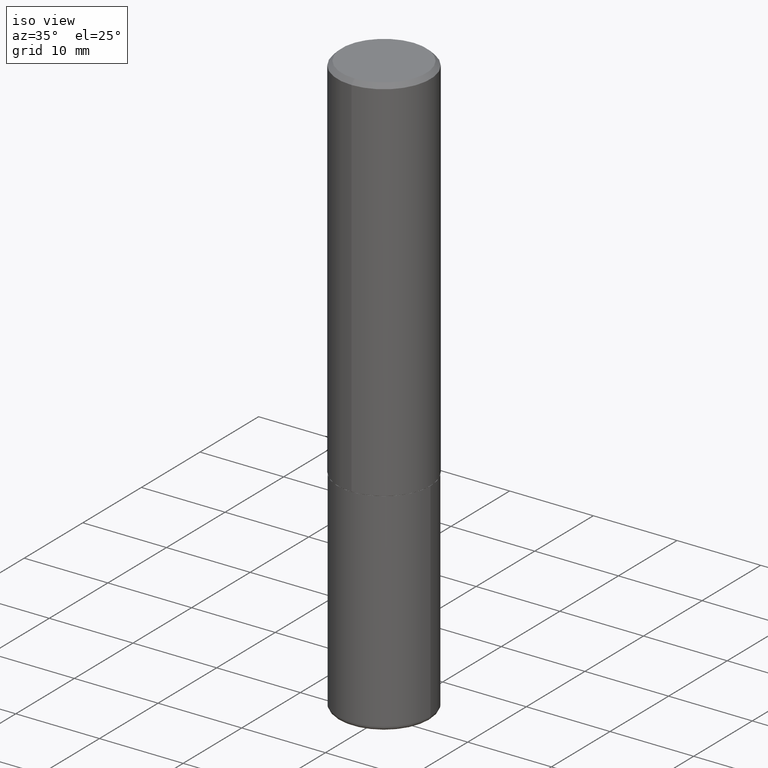
[diagram: clean part render]
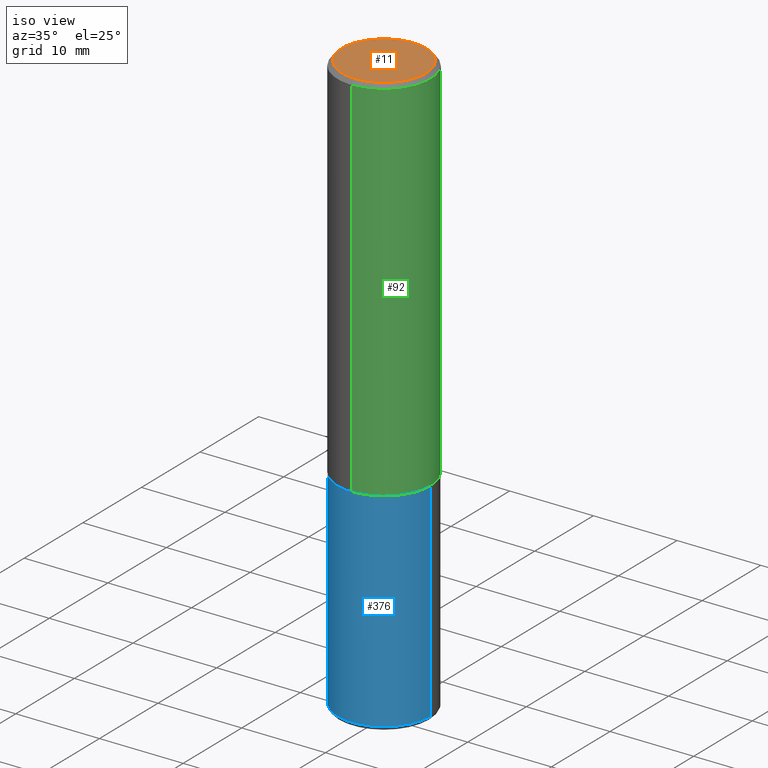
[diagram: same view with three faces highlighted in distinct colors, each labeled with its STEP entity id]
A machine part, iso view with three faces highlighted in distinct colors.
Their STEP definitions:

[orange] entity #11 — the highlighted planar face has unit normal (0, -0, -1).
#11 = ADVANCED_FACE ( 'NONE', ( #217 ), #32, .F. ) ;
#14 = EDGE_LOOP ( 'NONE', ( #213, #380 ) ) ;
#32 = PLANE ( 'NONE',  #220 ) ;
#71 = DIRECTION ( 'NONE',  ( -2.444696018553826107E-29, 3.492588014715522738E-15, 1.000000000000000000 ) ) ;
#82 = EDGE_CURVE ( 'NONE', #404, #270, #283, .T. ) ;
#85 = CIRCLE ( 'NONE', #155, 0.1987500000000002043 ) ;
#97 = CARTESIAN_POINT ( 'NONE',  ( 1.387863832190146810E-15, 0.1987500000000002043, -8.028889605074538150E-16 ) ) ;
#99 = CARTESIAN_POINT ( 'NONE',  ( 1.457693458967008925E-15, 0.1987500000000002043, -9.116260530901970397E-16 ) ) ;
#100 = DIRECTION ( 'NONE',  ( 6.982962677686265922E-15, 1.000000000000000000, -3.492588014715522738E-15 ) ) ;
#105 = DIRECTION ( 'NONE',  ( 2.444696018553825827E-29, -3.492588014715522738E-15, -1.000000000000000000 ) ) ;
#109 = AXIS2_PLACEMENT_3D ( 'NONE', #389, #238, #367 ) ;
#123 = EDGE_CURVE ( 'NONE', #270, #404, #85, .T. ) ;
#134 = CARTESIAN_POINT ( 'NONE',  ( -1.432128957034807395E-15, -0.1987500000000002043, 4.766776827592246339E-16 ) ) ;
#155 = AXIS2_PLACEMENT_3D ( 'NONE', #232, #71, #202 ) ;
#202 = DIRECTION ( 'NONE',  ( -6.982962677686265922E-15, -1.000000000000000000, 3.492588014715522343E-15 ) ) ;
#213 = ORIENTED_EDGE ( 'NONE', *, *, #82, .T. ) ;
#217 = FACE_OUTER_BOUND ( 'NONE', #14, .T. ) ;
#220 = AXIS2_PLACEMENT_3D ( 'NONE', #97, #105, #100 ) ;
#232 = CARTESIAN_POINT ( 'NONE',  ( 5.316582746123012176E-45, -7.595477326190008111E-31, -2.174741851654860303E-16 ) ) ;
#238 = DIRECTION ( 'NONE',  ( -2.444696018553826107E-29, 3.492588014715522738E-15, 1.000000000000000000 ) ) ;
#270 = VERTEX_POINT ( 'NONE', #134 ) ;
#283 = CIRCLE ( 'NONE', #109, 0.1987500000000002043 ) ;
#367 = DIRECTION ( 'NONE',  ( -6.982962677686265922E-15, -1.000000000000000000, 3.492588014715522343E-15 ) ) ;
#380 = ORIENTED_EDGE ( 'NONE', *, *, #123, .T. ) ;
#389 = CARTESIAN_POINT ( 'NONE',  ( 5.316582746123012176E-45, -7.595477326190008111E-31, -2.174741851654860303E-16 ) ) ;
#404 = VERTEX_POINT ( 'NONE', #99 ) ;

[blue] entity #376 — the highlighted cylindrical surface (partial cylindrical patch) has radius 5.5562 mm, axis along (-0, 0, 1).
#6 = CARTESIAN_POINT ( 'NONE',  ( 4.279570410823988484E-29, -6.110092342975504671E-15, -1.750000000000000000 ) ) ;
#7 = EDGE_CURVE ( 'NONE', #318, #95, #399, .T. ) ;
#49 = EDGE_CURVE ( 'NONE', #318, #316, #159, .T. ) ;
#55 = CARTESIAN_POINT ( 'NONE',  ( 0.2187500000000000000, -1.527523085743870843E-15, 1.066663669705360885E-29 ) ) ;
#59 = ORIENTED_EDGE ( 'NONE', *, *, #233, .T. ) ;
#83 = DIRECTION ( 'NONE',  ( -2.445468806185136877E-29, 3.491481338843145188E-15, 1.000000000000000000 ) ) ;
#86 = CARTESIAN_POINT ( 'NONE',  ( 6.676129840885423672E-29, -9.531744055041786561E-15, -2.729999999999999982 ) ) ;
#88 = EDGE_LOOP ( 'NONE', ( #101, #250, #59, #167 ) ) ;
#95 = VERTEX_POINT ( 'NONE', #208 ) ;
#101 = ORIENTED_EDGE ( 'NONE', *, *, #49, .F. ) ;
#125 = DIRECTION ( 'NONE',  ( -2.445468806185136877E-29, 3.491481338843145188E-15, 1.000000000000000000 ) ) ;
#129 = CIRCLE ( 'NONE', #151, 0.2187500000000000000 ) ;
#136 = AXIS2_PLACEMENT_3D ( 'NONE', #162, #195, #413 ) ;
#141 = DIRECTION ( 'NONE',  ( -2.445468806185136597E-29, 3.491481338843145583E-15, 1.000000000000000000 ) ) ;
#151 = AXIS2_PLACEMENT_3D ( 'NONE', #6, #141, #245 ) ;
#156 = EDGE_CURVE ( 'NONE', #316, #157, #129, .T. ) ;
#157 = VERTEX_POINT ( 'NONE', #335 ) ;
#159 = LINE ( 'NONE', #411, #203 ) ;
#162 = CARTESIAN_POINT ( 'NONE',  ( 0.000000000000000000, 0.000000000000000000, 0.000000000000000000 ) ) ;
#167 = ORIENTED_EDGE ( 'NONE', *, *, #156, .F. ) ;
#195 = DIRECTION ( 'NONE',  ( -2.445468806185136597E-29, 3.491481338843145583E-15, 1.000000000000000000 ) ) ;
#203 = VECTOR ( 'NONE', #125, 39.37007874015748143 ) ;
#208 = CARTESIAN_POINT ( 'NONE',  ( 0.2187499999999999445, -1.105926714078565662E-14, -2.729999999999999982 ) ) ;
#233 = EDGE_CURVE ( 'NONE', #95, #157, #248, .T. ) ;
#241 = VECTOR ( 'NONE', #83, 39.37007874015748143 ) ;
#245 = DIRECTION ( 'NONE',  ( 1.000000000000000000, -6.982962677686267499E-15, 0.000000000000000000 ) ) ;
#248 = LINE ( 'NONE', #55, #241 ) ;
#250 = ORIENTED_EDGE ( 'NONE', *, *, #7, .T. ) ;
#253 = CARTESIAN_POINT ( 'NONE',  ( -0.2187499999999999445, -7.977431820566568982E-15, -2.729999999999999982 ) ) ;
#273 = DIRECTION ( 'NONE',  ( -2.445468806185136597E-29, 3.491481338843145583E-15, 1.000000000000000000 ) ) ;
#282 = CARTESIAN_POINT ( 'NONE',  ( -0.2187500000000000000, -6.266605964533427643E-15, -1.750000000000000000 ) ) ;
#316 = VERTEX_POINT ( 'NONE', #282 ) ;
#318 = VERTEX_POINT ( 'NONE', #253 ) ;
#325 = AXIS2_PLACEMENT_3D ( 'NONE', #86, #273, #343 ) ;
#335 = CARTESIAN_POINT ( 'NONE',  ( 0.2187500000000000000, -7.637615428719375514E-15, -1.750000000000000000 ) ) ;
#343 = DIRECTION ( 'NONE',  ( 1.000000000000000000, -6.982962677686262766E-15, 0.000000000000000000 ) ) ;
#376 = ADVANCED_FACE ( 'NONE', ( #410 ), #416, .T. ) ;
#399 = CIRCLE ( 'NONE', #325, 0.2187500000000000000 ) ;
#410 = FACE_OUTER_BOUND ( 'NONE', #88, .T. ) ;
#411 = CARTESIAN_POINT ( 'NONE',  ( -0.2187500000000000000, 1.554312234475219157E-15, -1.076017050993260622E-29 ) ) ;
#413 = DIRECTION ( 'NONE',  ( 1.000000000000000000, -6.982962677686266711E-15, 4.876176775795935232E-29 ) ) ;
#416 = CYLINDRICAL_SURFACE ( 'NONE', #136, 0.2187500000000000000 ) ;

[green] entity #92 — the highlighted cylindrical surface (partial cylindrical patch) has radius 5.5563 mm, axis along (-0, 0, 1).
#19 = AXIS2_PLACEMENT_3D ( 'NONE', #210, #331, #44 ) ;
#44 = DIRECTION ( 'NONE',  ( -6.982962677686265922E-15, -1.000000000000000000, 3.492588014715522738E-15 ) ) ;
#45 = AXIS2_PLACEMENT_3D ( 'NONE', #311, #127, #349 ) ;
#61 = CARTESIAN_POINT ( 'NONE',  ( -1.500733937012521740E-15, -0.2187500000000000555, -0.01999999999999928571 ) ) ;
#64 = EDGE_LOOP ( 'NONE', ( #191, #218, #417, #256 ) ) ;
#72 = CIRCLE ( 'NONE', #45, 0.2187500000000001943 ) ;
#74 = FACE_OUTER_BOUND ( 'NONE', #64, .T. ) ;
#76 = CYLINDRICAL_SURFACE ( 'NONE', #19, 0.2187500000000000833 ) ;
#92 = ADVANCED_FACE ( 'NONE', ( #74 ), #76, .T. ) ;
#124 = DIRECTION ( 'NONE',  ( -2.444696018553826107E-29, 3.492588014715522738E-15, 1.000000000000000000 ) ) ;
#127 = DIRECTION ( 'NONE',  ( -2.444696018553826107E-29, 3.492588014715522738E-15, 1.000000000000000000 ) ) ;
#153 = VERTEX_POINT ( 'NONE', #296 ) ;
#163 = VERTEX_POINT ( 'NONE', #212 ) ;
#184 = VECTOR ( 'NONE', #124, 39.37007874015748143 ) ;
#190 = CARTESIAN_POINT ( 'NONE',  ( 4.889392037107664756E-31, -6.985176029431062485E-17, -0.02000000000000005246 ) ) ;
#191 = ORIENTED_EDGE ( 'NONE', *, *, #265, .T. ) ;
#210 = CARTESIAN_POINT ( 'NONE',  ( 0.000000000000000000, 0.000000000000000000, 0.000000000000000000 ) ) ;
#212 = CARTESIAN_POINT ( 'NONE',  ( 1.527523085743871040E-15, 0.2187499999999999167, -0.02000000000000081574 ) ) ;
#218 = ORIENTED_EDGE ( 'NONE', *, *, #363, .T. ) ;
#223 = DIRECTION ( 'NONE',  ( -6.982962677686265133E-15, -1.000000000000000000, 3.492862791899308071E-15 ) ) ;
#256 = ORIENTED_EDGE ( 'NONE', *, *, #328, .F. ) ;
#259 = CARTESIAN_POINT ( 'NONE',  ( 1.554312234475219551E-15, 0.2187500000000000833, -7.640036282190209070E-16 ) ) ;
#265 = EDGE_CURVE ( 'NONE', #401, #153, #72, .T. ) ;
#280 = DIRECTION ( 'NONE',  ( -2.444696018553826107E-29, 3.492588014715522738E-15, 1.000000000000000000 ) ) ;
#287 = DIRECTION ( 'NONE',  ( -2.444696018553826107E-29, 3.492588014715522738E-15, 1.000000000000000000 ) ) ;
#290 = CARTESIAN_POINT ( 'NONE',  ( -1.527523085743829231E-15, -0.2187500000000063005, -1.748999999999999000 ) ) ;
#296 = CARTESIAN_POINT ( 'NONE',  ( 1.554312234475241442E-15, 0.2187499999999940603, -1.749000000000000554 ) ) ;
#311 = CARTESIAN_POINT ( 'NONE',  ( 4.275773336450641228E-29, -6.108536437737448619E-15, -1.748999999999999888 ) ) ;
#315 = LINE ( 'NONE', #259, #346 ) ;
#328 = EDGE_CURVE ( 'NONE', #401, #396, #347, .T. ) ;
#331 = DIRECTION ( 'NONE',  ( -2.444696018553826107E-29, 3.492588014715522738E-15, 1.000000000000000000 ) ) ;
#337 = CIRCLE ( 'NONE', #369, 0.2187500000000000000 ) ;
#346 = VECTOR ( 'NONE', #280, 39.37007874015748143 ) ;
#347 = LINE ( 'NONE', #418, #184 ) ;
#349 = DIRECTION ( 'NONE',  ( -6.982962677686265922E-15, -1.000000000000000000, 3.746534391310986401E-15 ) ) ;
#363 = EDGE_CURVE ( 'NONE', #153, #163, #315, .T. ) ;
#369 = AXIS2_PLACEMENT_3D ( 'NONE', #190, #287, #223 ) ;
#396 = VERTEX_POINT ( 'NONE', #61 ) ;
#401 = VERTEX_POINT ( 'NONE', #290 ) ;
#402 = EDGE_CURVE ( 'NONE', #396, #163, #337, .T. ) ;
#417 = ORIENTED_EDGE ( 'NONE', *, *, #402, .F. ) ;
#418 = CARTESIAN_POINT ( 'NONE',  ( -1.527523085743871237E-15, -0.2187500000000000833, 7.640036282190209070E-16 ) ) ;